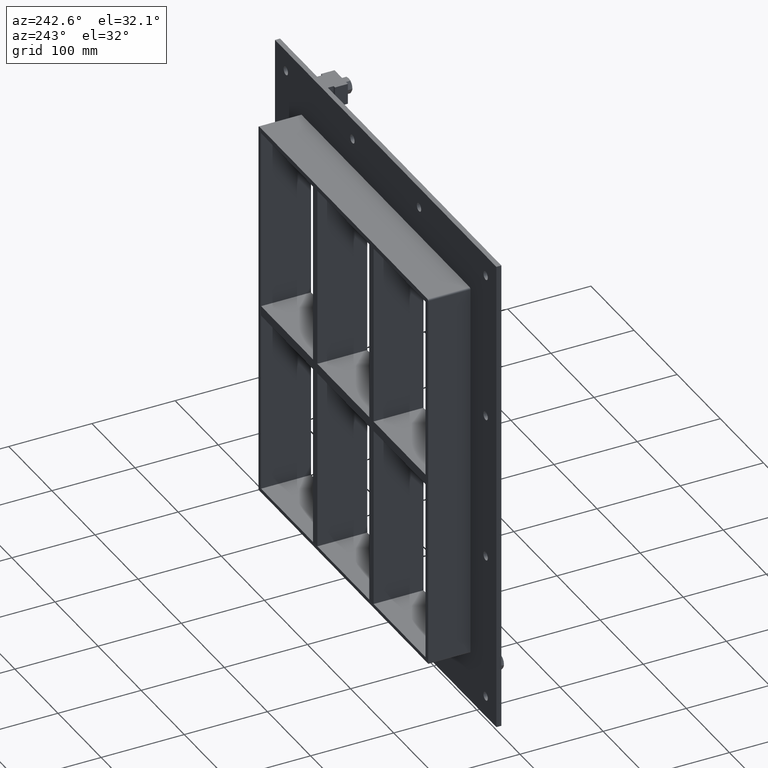
[diagram: clean part render]
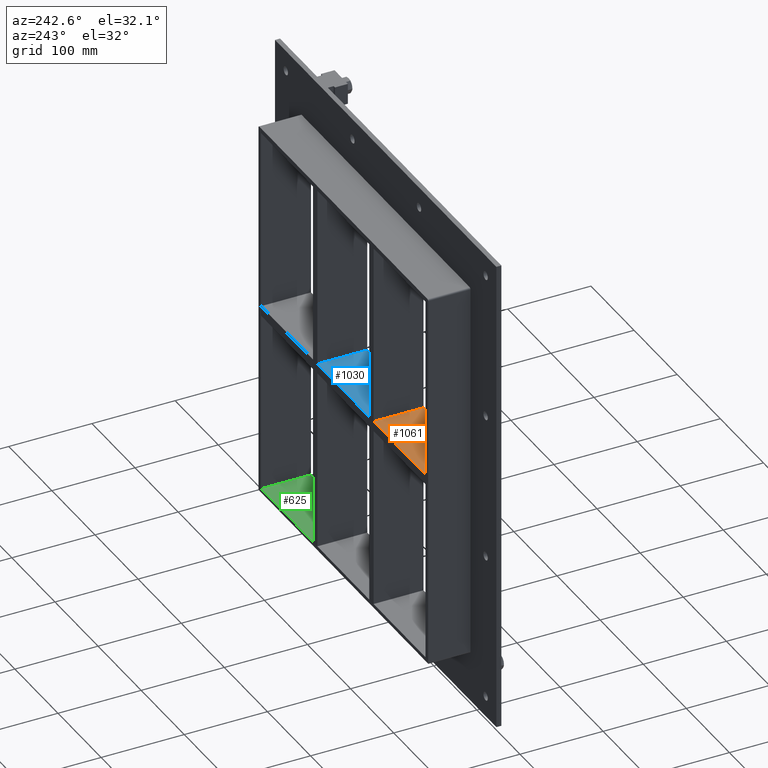
[diagram: same view with three faces highlighted in distinct colors, each labeled with its STEP entity id]
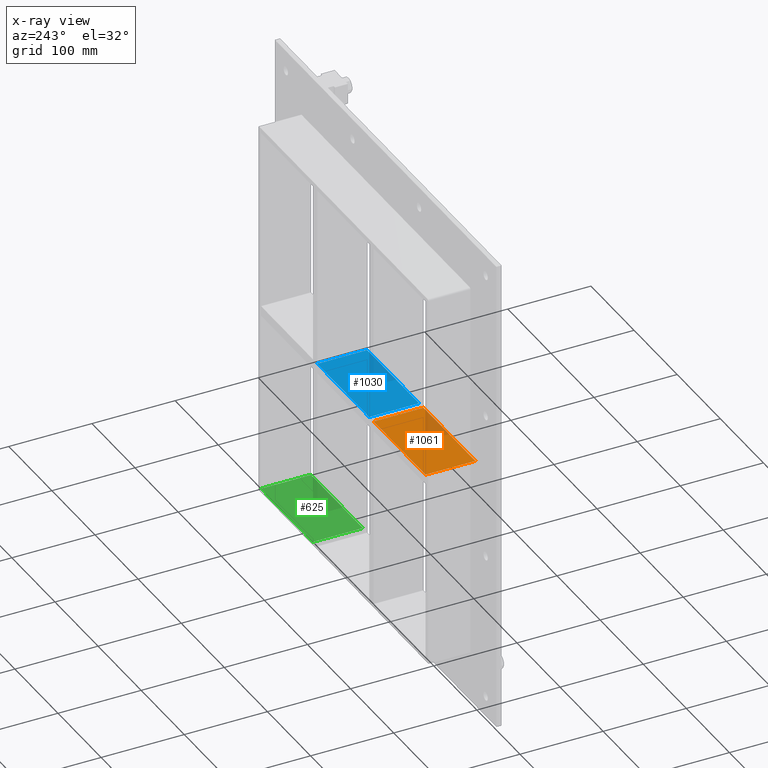
[diagram: x-ray of the same camera — body ghosted, the three highlighted faces saturated]
A machine part, auxiliary view with three faces highlighted in distinct colors.
The next image is the same camera in x-ray (body ghosted, the three faces saturated) — at least one of them is partly hidden behind the body in this view.
Their STEP definitions:

[orange] entity #1061 — the highlighted planar face has unit normal (0, 0, 1).
#821=CARTESIAN_POINT('',(-190.74999999999875,-3.0,6.000000000000227));
#822=VERTEX_POINT('',#821);
#839=CARTESIAN_POINT('',(-70.250000000000355,-3.0,6.000000000000227));
#840=VERTEX_POINT('',#839);
#847=CARTESIAN_POINT('',(-190.74999999999875,-3.0,6.000000000000227));
#848=DIRECTION('',(1.0,0.0,0.0));
#849=VECTOR('',#848,120.49999999999839);
#850=LINE('',#847,#849);
#851=EDGE_CURVE('',#822,#840,#850,.T.);
#1031=CARTESIAN_POINT('',(-190.74999999999875,-3.0,6.000000000000227));
#1032=DIRECTION('',(0.0,0.0,1.0));
#1033=DIRECTION('',(1.0,0.0,0.0));
#1034=AXIS2_PLACEMENT_3D('',#1031,#1032,#1033);
#1035=PLANE('',#1034);
#1036=CARTESIAN_POINT('',(-70.250000000000355,57.0,6.000000000000227));
#1037=VERTEX_POINT('',#1036);
#1038=CARTESIAN_POINT('',(-70.250000000000355,57.0,6.000000000000227));
#1039=DIRECTION('',(0.0,-1.0,0.0));
#1040=VECTOR('',#1039,60.0);
#1041=LINE('',#1038,#1040);
#1042=EDGE_CURVE('',#1037,#840,#1041,.T.);
#1043=ORIENTED_EDGE('',*,*,#1042,.F.);
#1044=CARTESIAN_POINT('',(-190.74999999999875,57.0,6.000000000000227));
#1045=VERTEX_POINT('',#1044);
#1046=CARTESIAN_POINT('',(-190.74999999999875,57.0,6.000000000000227));
#1047=DIRECTION('',(1.0,0.0,0.0));
#1048=VECTOR('',#1047,120.49999999999839);
#1049=LINE('',#1046,#1048);
#1050=EDGE_CURVE('',#1045,#1037,#1049,.T.);
#1051=ORIENTED_EDGE('',*,*,#1050,.F.);
#1052=CARTESIAN_POINT('',(-190.75000000000003,-3.0,6.000000000000227));
#1053=DIRECTION('',(0.0,1.0,0.0));
#1054=VECTOR('',#1053,60.000000000000007);
#1055=LINE('',#1052,#1054);
#1056=EDGE_CURVE('',#822,#1045,#1055,.T.);
#1057=ORIENTED_EDGE('',*,*,#1056,.F.);
#1058=ORIENTED_EDGE('',*,*,#851,.T.);
#1059=EDGE_LOOP('',(#1043,#1051,#1057,#1058));
#1060=FACE_OUTER_BOUND('',#1059,.T.);
#1061=ADVANCED_FACE('',(#1060),#1035,.T.);

[blue] entity #1030 — the highlighted planar face has unit normal (0, 0, 1).
#409=CARTESIAN_POINT('',(60.249999999999659,-3.0,6.000000000000227));
#410=VERTEX_POINT('',#409);
#411=CARTESIAN_POINT('',(60.249999999999659,57.0,6.000000000000227));
#412=VERTEX_POINT('',#411);
#413=CARTESIAN_POINT('',(60.249999999999659,-3.0,6.000000000000227));
#414=DIRECTION('',(0.0,1.0,0.0));
#415=VECTOR('',#414,60.0);
#416=LINE('',#413,#415);
#417=EDGE_CURVE('',#410,#412,#416,.T.);
#719=CARTESIAN_POINT('',(-60.249999999996362,-3.0,6.000000000000227));
#720=VERTEX_POINT('',#719);
#721=CARTESIAN_POINT('',(-60.249999999996362,-3.0,6.000000000000227));
#722=DIRECTION('',(1.0,0.0,0.0));
#723=VECTOR('',#722,120.49999999999602);
#724=LINE('',#721,#723);
#725=EDGE_CURVE('',#720,#410,#724,.T.);
#1007=CARTESIAN_POINT('',(-190.74999999999875,-3.0,6.000000000000227));
#1008=DIRECTION('',(0.0,0.0,1.0));
#1009=DIRECTION('',(1.0,0.0,0.0));
#1010=AXIS2_PLACEMENT_3D('',#1007,#1008,#1009);
#1011=PLANE('',#1010);
#1012=ORIENTED_EDGE('',*,*,#417,.T.);
#1013=CARTESIAN_POINT('',(-60.249999999996362,57.0,6.000000000000227));
#1014=VERTEX_POINT('',#1013);
#1015=CARTESIAN_POINT('',(-60.249999999996362,57.0,6.000000000000227));
#1016=DIRECTION('',(1.0,0.0,0.0));
#1017=VECTOR('',#1016,120.49999999999602);
#1018=LINE('',#1015,#1017);
#1019=EDGE_CURVE('',#1014,#412,#1018,.T.);
#1020=ORIENTED_EDGE('',*,*,#1019,.F.);
#1021=CARTESIAN_POINT('',(-60.249999999996362,-3.0,6.000000000000227));
#1022=DIRECTION('',(0.0,1.0,0.0));
#1023=VECTOR('',#1022,60.0);
#1024=LINE('',#1021,#1023);
#1025=EDGE_CURVE('',#720,#1014,#1024,.T.);
#1026=ORIENTED_EDGE('',*,*,#1025,.F.);
#1027=ORIENTED_EDGE('',*,*,#725,.T.);
#1028=EDGE_LOOP('',(#1012,#1020,#1026,#1027));
#1029=FACE_OUTER_BOUND('',#1028,.T.);
#1030=ADVANCED_FACE('',(#1029),#1011,.T.);

[green] entity #625 — the highlighted planar face has unit normal (0, 0, -1).
#539=CARTESIAN_POINT('',(70.250000000003638,-3.0,-223.9999999999817));
#540=VERTEX_POINT('',#539);
#547=CARTESIAN_POINT('',(70.250000000003638,57.0,-223.99999999998164));
#548=VERTEX_POINT('',#547);
#549=CARTESIAN_POINT('',(70.250000000003638,57.000000000000007,-224.0));
#550=DIRECTION('',(0.0,-1.0,0.0));
#551=VECTOR('',#550,60.000000000000007);
#552=LINE('',#549,#551);
#553=EDGE_CURVE('',#548,#540,#552,.T.);
#595=CARTESIAN_POINT('',(190.75000000000003,0.0,-224.0));
#596=DIRECTION('',(0.0,0.0,-1.0));
#597=DIRECTION('',(-1.0,0.0,0.0));
#598=AXIS2_PLACEMENT_3D('',#595,#596,#597);
#599=PLANE('',#598);
#600=ORIENTED_EDGE('',*,*,#553,.T.);
#601=CARTESIAN_POINT('',(190.75000000000003,-3.0,-224.0));
#602=VERTEX_POINT('',#601);
#603=CARTESIAN_POINT('',(190.75000000000003,-3.0,-224.0));
#604=DIRECTION('',(-1.0,0.0,0.0));
#605=VECTOR('',#604,120.49999999999639);
#606=LINE('',#603,#605);
#607=EDGE_CURVE('',#602,#540,#606,.T.);
#608=ORIENTED_EDGE('',*,*,#607,.F.);
#609=CARTESIAN_POINT('',(190.75000000000003,57.0,-224.0));
#610=VERTEX_POINT('',#609);
#611=CARTESIAN_POINT('',(190.75000000000003,56.999999999999993,-224.0));
#612=DIRECTION('',(0.0,-1.0,0.0));
#613=VECTOR('',#612,59.999999999999993);
#614=LINE('',#611,#613);
#615=EDGE_CURVE('',#610,#602,#614,.T.);
#616=ORIENTED_EDGE('',*,*,#615,.F.);
#617=CARTESIAN_POINT('',(70.250000000003638,57.0,-224.0));
#618=DIRECTION('',(1.0,0.0,0.0));
#619=VECTOR('',#618,120.49999999999639);
#620=LINE('',#617,#619);
#621=EDGE_CURVE('',#548,#610,#620,.T.);
#622=ORIENTED_EDGE('',*,*,#621,.F.);
#623=EDGE_LOOP('',(#600,#608,#616,#622));
#624=FACE_OUTER_BOUND('',#623,.T.);
#625=ADVANCED_FACE('',(#624),#599,.F.);